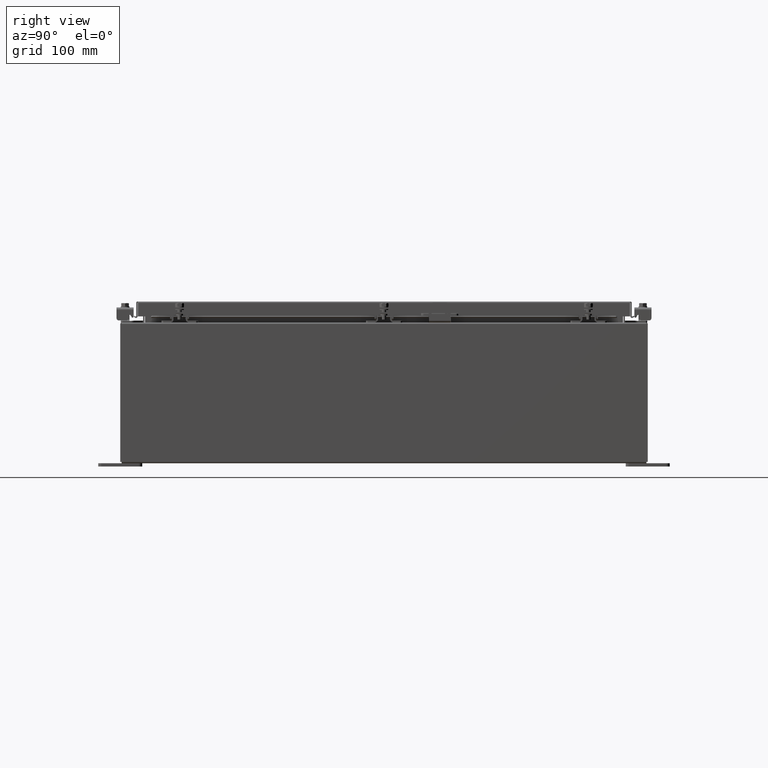
[diagram: clean part render]
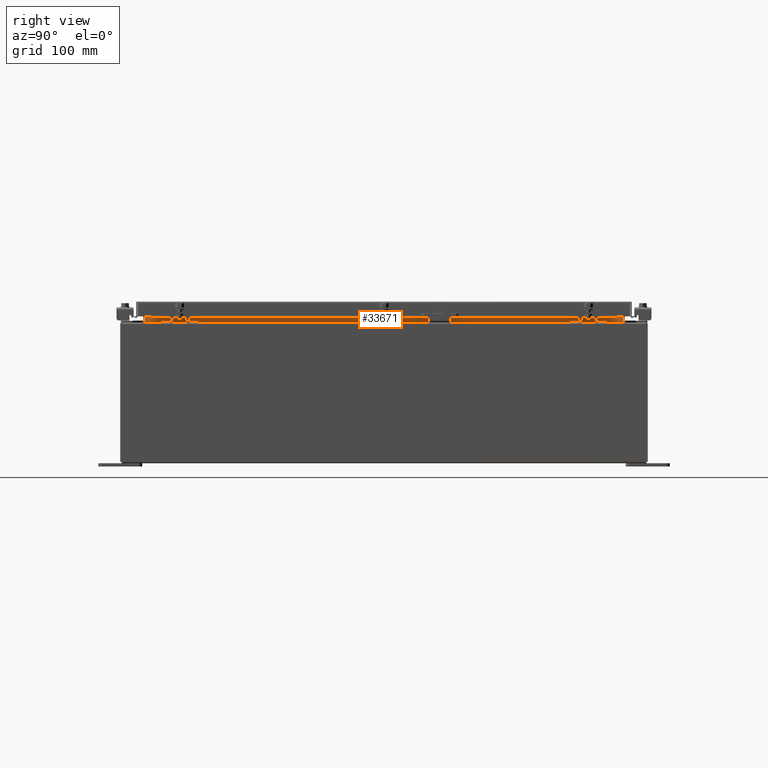
[diagram: same view with one face highlighted and labeled with its STEP entity id]
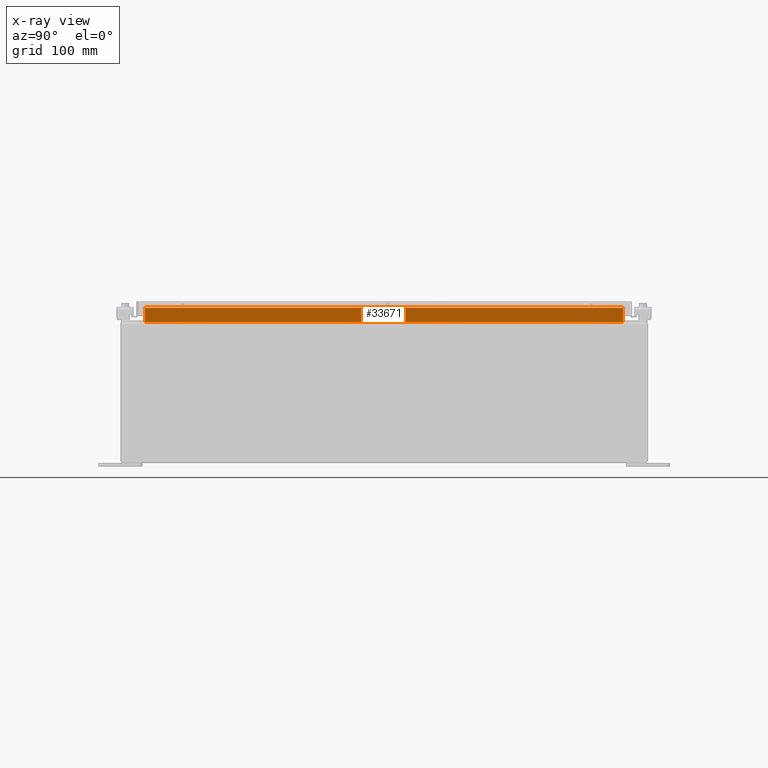
[diagram: x-ray of the same camera — body ghosted, the highlighted face saturated]
A machine part, right view. The second image highlights one B-rep face of the part: STEP entity #33671.
The next image is the same camera in x-ray: the body ghosted, the highlighted face saturated — about 0% of this face is hidden behind the body in this view.
In plain terms, the highlighted planar face has unit normal (1, 0, -0).
Its self-contained STEP definition (entity closure, byte-faithful):
#326 = VERTEX_POINT ( 'NONE', #12729 ) ;
#1516 = DIRECTION ( 'NONE',  ( 8.038541222736220000E-017, -1.000000000000000000, 1.607708244547244000E-016 ) ) ;
#1669 = VECTOR ( 'NONE', #14344, 39.37007874015748100 ) ;
#2449 = ORIENTED_EDGE ( 'NONE', *, *, #7047, .F. ) ;
#4750 = CARTESIAN_POINT ( 'NONE',  ( 10.69970000000002800, -13.59375000000000200, 8.850600000000007100 ) ) ;
#5633 = ORIENTED_EDGE ( 'NONE', *, *, #33969, .F. ) ;
#7047 = EDGE_CURVE ( 'NONE', #30332, #34562, #29396, .T. ) ;
#9269 = EDGE_CURVE ( 'NONE', #20695, #30332, #11060, .T. ) ;
#9654 = CARTESIAN_POINT ( 'NONE',  ( 10.69970000000002800, -13.59375000000000200, 8.762900000000007200 ) ) ;
#10925 = PLANE ( 'NONE',  #35666 ) ;
#11060 = LINE ( 'NONE', #33652, #1669 ) ;
#11187 = DIRECTION ( 'NONE',  ( 1.000000000000000000, 0.0000000000000000000, -2.361913319930196000E-015 ) ) ;
#12729 = CARTESIAN_POINT ( 'NONE',  ( 10.69970000000002800, -13.59375000000000200, 8.762900000000007200 ) ) ;
#14344 = DIRECTION ( 'NONE',  ( -2.361913319930196000E-015, -0.0000000000000000000, -1.000000000000000000 ) ) ;
#15702 = VECTOR ( 'NONE', #18385, 39.37007874015748100 ) ;
#17097 = FACE_OUTER_BOUND ( 'NONE', #35089, .T. ) ;
#17666 = LINE ( 'NONE', #4750, #33212 ) ;
#18385 = DIRECTION ( 'NONE',  ( 0.0000000000000000000, 1.000000000000000000, 0.0000000000000000000 ) ) ;
#19135 = CARTESIAN_POINT ( 'NONE',  ( 10.69970000000002800, 13.59375000000000200, 8.762900000000007200 ) ) ;
#20288 = EDGE_CURVE ( 'NONE', #34562, #326, #17666, .T. ) ;
#20695 = VERTEX_POINT ( 'NONE', #19135 ) ;
#25311 = LINE ( 'NONE', #9654, #15702 ) ;
#25672 = CARTESIAN_POINT ( 'NONE',  ( 10.69970000000000500, 0.0000000000000000000, -2.527176394925713500E-014 ) ) ;
#26584 = ORIENTED_EDGE ( 'NONE', *, *, #9269, .F. ) ;
#27925 = CARTESIAN_POINT ( 'NONE',  ( 10.69970000000002500, 13.59375000000000400, 7.938300000000009700 ) ) ;
#28465 = VECTOR ( 'NONE', #1516, 39.37007874015748100 ) ;
#29396 = LINE ( 'NONE', #34670, #28465 ) ;
#29420 = DIRECTION ( 'NONE',  ( -2.361913319930196000E-015, 0.0000000000000000000, -1.000000000000000000 ) ) ;
#30332 = VERTEX_POINT ( 'NONE', #27925 ) ;
#30825 = CARTESIAN_POINT ( 'NONE',  ( 10.69970000000002500, -13.59375000000000400, 7.938300000000009700 ) ) ;
#33212 = VECTOR ( 'NONE', #37345, 39.37007874015748100 ) ;
#33652 = CARTESIAN_POINT ( 'NONE',  ( 10.69970000000002500, 13.59375000000000200, 7.925300000000007100 ) ) ;
#33671 = ADVANCED_FACE ( 'NONE', ( #17097 ), #10925, .T. ) ;
#33969 = EDGE_CURVE ( 'NONE', #326, #20695, #25311, .T. ) ;
#34562 = VERTEX_POINT ( 'NONE', #30825 ) ;
#34670 = CARTESIAN_POINT ( 'NONE',  ( 10.69970000000002500, 13.59375000000000200, 7.938300000000007900 ) ) ;
#35089 = EDGE_LOOP ( 'NONE', ( #26584, #5633, #35293, #2449 ) ) ;
#35293 = ORIENTED_EDGE ( 'NONE', *, *, #20288, .F. ) ;
#35666 = AXIS2_PLACEMENT_3D ( 'NONE', #25672, #11187, #29420 ) ;
#37345 = DIRECTION ( 'NONE',  ( 2.361913319930201500E-015, -0.0000000000000000000, 1.000000000000000000 ) ) ;